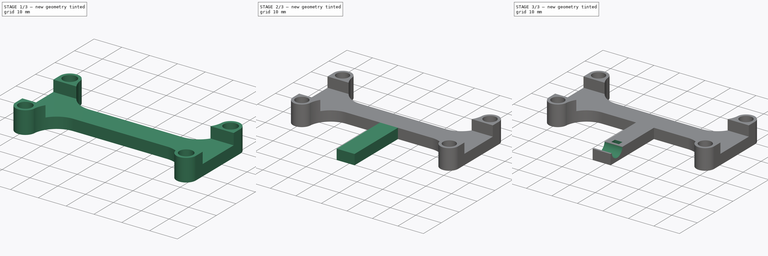
[diagram: build sequence overview — one tinted view per stage of 3, left to right]
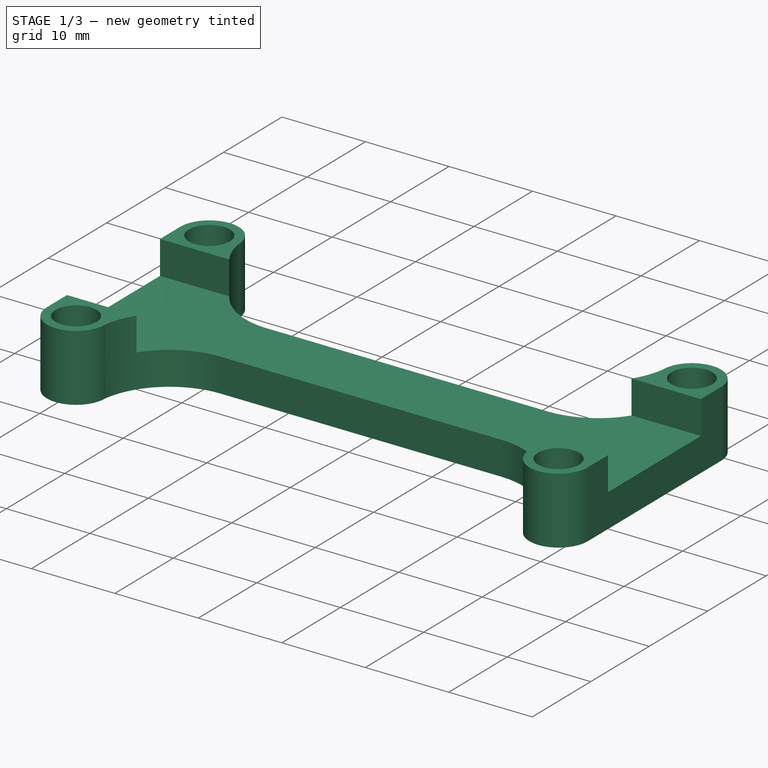
[diagram: stage 1 of 3 — iso view after this stage's code; geometry added in this stage tinted green]
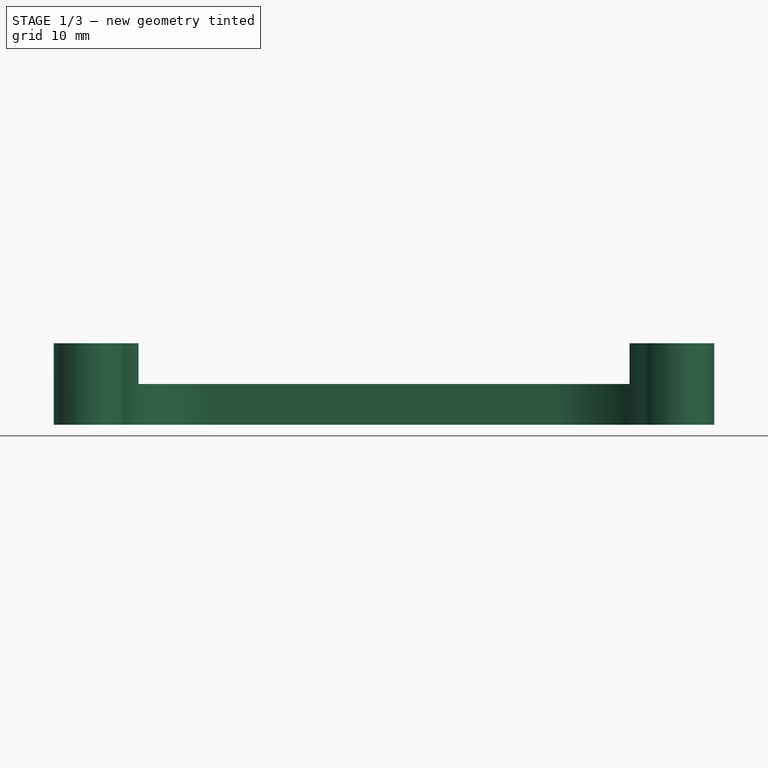
[diagram: stage 1 of 3 — front view after this stage's code; geometry added in this stage tinted green]
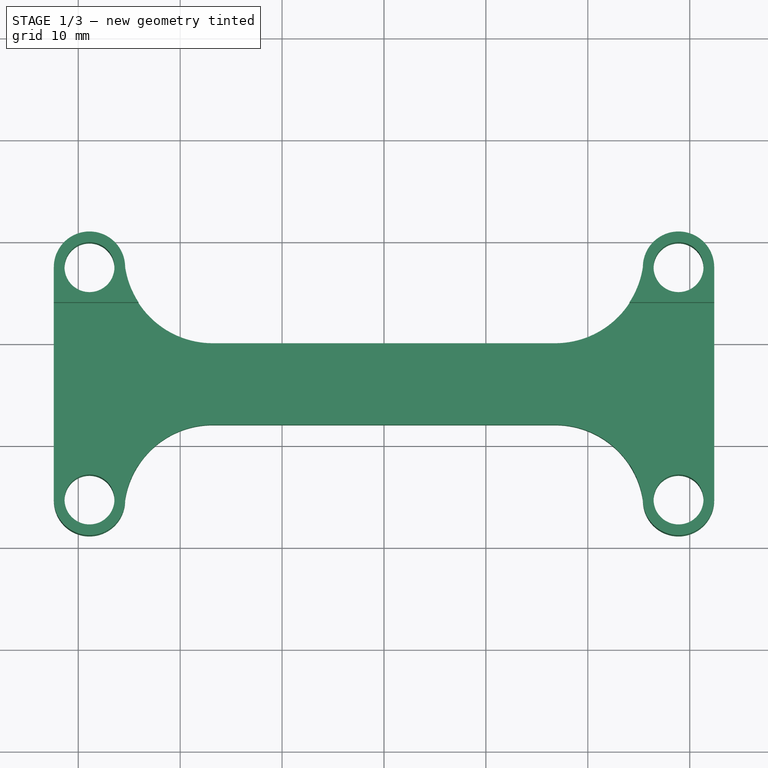
[diagram: stage 1 of 3 — top view after this stage's code; geometry added in this stage tinted green]
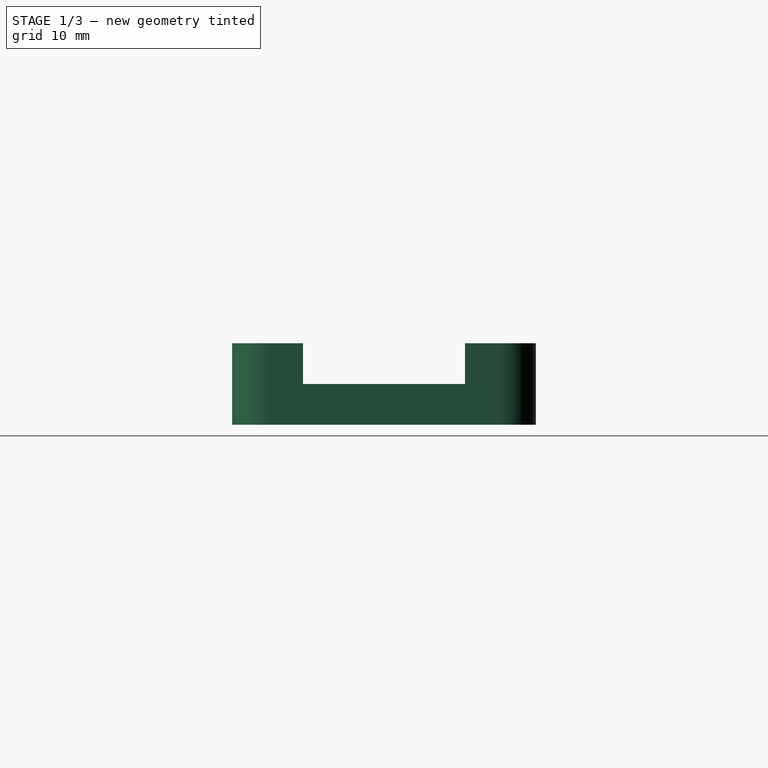
[diagram: stage 1 of 3 — right view after this stage's code; geometry added in this stage tinted green]
FCSTD DOCUMENT  (FreeCAD 1.0R39109 (Git))
Label: OragePiZero2W_Mount
License: All rights reserved
LicenseURL: http://en.wikipedia.org/wiki/All_rights_reserved
objects: Sketcher::SketchObject×6, PartDesign::Pad×2, PartDesign::Pocket×2, PartDesign::Hole×1, PartDesign::Body×1
note: 28 computed .brp shape members not serialized (recipe doc carries the construction recipe); baked Part::Feature solids carry a one-line shape summary decoded from their .brp

FEATURE [Sketcher::SketchObject] Sketch
  ArcFitTolerance = 1e-06
  AttachmentSupport = -> [XY_Plane]
  FullyConstrained = false
  MakeInternals = false
  MapMode = 5
  sketch-geometry (8):
    g0: Circle CenterX=28.9093 CenterY=17.414 CenterZ=0 NormalX=0 NormalY=0 NormalZ=1 AngleXU=0 Radius=1.4
    g1: Circle CenterX=-28.9 CenterY=17.4463 CenterZ=0 NormalX=0 NormalY=0 NormalZ=1 AngleXU=0 Radius=1.40972
    g2: LineSegment [constr] StartX=-27.4907 StartY=17.414 StartZ=0 EndX=27.5093 EndY=17.414 EndZ=0
    g3: Circle CenterX=28.9 CenterY=-5.35365 CenterZ=0 NormalX=0 NormalY=0 NormalZ=1 AngleXU=0 Radius=1.3686
    g4: Circle CenterX=-28.9 CenterY=-5.35365 CenterZ=0 NormalX=0 NormalY=0 NormalZ=1 AngleXU=0 Radius=1.4
    g5: LineSegment [constr] StartX=-27.5 StartY=-5.35365 StartZ=0 EndX=27.5 EndY=-5.35365 EndZ=0
    g6: LineSegment [constr] StartX=-28.9 StartY=-3.95365 StartZ=0 EndX=-28.9 EndY=16.0463 EndZ=0
    g7: LineSegment [constr] StartX=28.8589 StartY=16.0149 StartZ=0 EndX=28.8994 EndY=-3.98505 EndZ=0
  constraints (11):
    c: Diameter(g0) = 2.8
    c: PointOnObject(g2,g1)
    c: PointOnObject(g2,g0)
    c: Distance(g2) = 55
    c: Horizontal(g0,g2)
    c: Distance(g6) = 20
    c: PointOnObject(g7,g0)
    c: PointOnObject(g7,g3)
    c: Distance(g7) = 20
    c: Horizontal(g5)
    c: Horizontal(g2)
FEATURE [Sketcher::SketchObject] Sketch001
  ArcFitTolerance = 1e-06
  AttachmentSupport = -> [XY_Plane]
  ExternalGeometry = -> [Sketch]
  FullyConstrained = false
  MakeInternals = false
  MapMode = 5
  sketch-geometry (35):
    g0: Circle CenterX=-28.9 CenterY=17.4463 CenterZ=0 NormalX=0 NormalY=0 NormalZ=1 AngleXU=0 Radius=2.45
    g1: ArcOfCircle CenterX=-28.9 CenterY=17.4463 CenterZ=0 NormalX=0 NormalY=0 NormalZ=1 AngleXU=0 Radius=3.5 StartAngle=6.28319 EndAngle=6.28319
    g2: LineSegment [constr] StartX=-28.9 StartY=17.4463 StartZ=0 EndX=-32.4 EndY=17.4463 EndZ=0
    g3: LineSegment StartX=-32.4 StartY=17.4463 StartZ=0 EndX=-32.4 EndY=6.04635 EndZ=0
    g4: LineSegment [constr] StartX=-28.9 StartY=17.4463 StartZ=0 EndX=-25.4 EndY=17.4463 EndZ=0
    g5: LineSegment [constr] StartX=-32.4 StartY=6.04635 StartZ=0 EndX=1.2e-15 EndY=6.04651 EndZ=0
    g6: LineSegment [constr] StartX=0 StartY=6.04651 StartZ=0 EndX=0 EndY=10.0465 EndZ=0
    g7: ArcOfCircle CenterX=-28.9 CenterY=17.4463 CenterZ=0 NormalX=0 NormalY=0 NormalZ=1 AngleXU=0 Radius=3.5 StartAngle=1.45074e-07 EndAngle=3.14159
    g8: ArcOfCircle CenterX=-16.7962 CenterY=18.7478 CenterZ=0 NormalX=0 NormalY=0 NormalZ=1 AngleXU=0 Radius=8.70165 StartAngle=3.29171 EndAngle=4.70276
    g9: Circle CenterX=-28.8999 CenterY=-5.35362 CenterZ=0 NormalX=0 NormalY=0 NormalZ=1 AngleXU=0 Radius=2.45
    g10: ArcOfCircle CenterX=-28.8999 CenterY=-5.35362 CenterZ=0 NormalX=0 NormalY=0 NormalZ=1 AngleXU=0 Radius=3.5 StartAngle=9.94164e-06 EndAngle=1.00867e-05
    g11: LineSegment [constr] StartX=-28.8999 StartY=-5.35362 StartZ=0 EndX=-32.3999 EndY=-5.35365 EndZ=0
    g12: LineSegment StartX=-32.3999 StartY=-5.35365 StartZ=0 EndX=-32.4 EndY=6.04635 EndZ=0
    g13: LineSegment [constr] StartX=-28.8999 StartY=-5.35362 StartZ=0 EndX=-25.3999 EndY=-5.35358 EndZ=0
    g14: LineSegment [constr] StartX=-1.2e-15 StartY=6.04651 StartZ=0 EndX=3.98619e-05 EndY=2.04651 EndZ=0
    g15: ArcOfCircle CenterX=-28.8999 CenterY=-5.35362 CenterZ=0 NormalX=0 NormalY=0 NormalZ=1 AngleXU=0 Radius=3.5 StartAngle=3.1416 EndAngle=6.2832
    g16: ArcOfCircle CenterX=-16.7961 CenterY=-6.6549 CenterZ=0 NormalX=0 NormalY=0 NormalZ=1 AngleXU=0 Radius=8.70165 StartAngle=1.58043 EndAngle=2.99148
    g17: Circle CenterX=28.9 CenterY=17.4463 CenterZ=0 NormalX=0 NormalY=0 NormalZ=1 AngleXU=0 Radius=2.45
    g18: ArcOfCircle CenterX=28.9 CenterY=17.4463 CenterZ=0 NormalX=0 NormalY=0 NormalZ=1 AngleXU=0 Radius=3.5 StartAngle=3.14159 EndAngle=3.14159
    g19: LineSegment [constr] StartX=28.9 StartY=17.4463 StartZ=0 EndX=32.4 EndY=17.4463 EndZ=0
    g20: LineSegment StartX=32.4 StartY=17.4463 StartZ=0 EndX=32.4 EndY=6.04635 EndZ=0
    g21: LineSegment [constr] StartX=28.9 StartY=17.4463 StartZ=0 EndX=25.4 EndY=17.4463 EndZ=0
    g22: LineSegment [constr] StartX=0 StartY=6.04651 StartZ=0 EndX=0 EndY=10.0465 EndZ=0
    g23: ArcOfCircle CenterX=28.9 CenterY=17.4463 CenterZ=0 NormalX=0 NormalY=0 NormalZ=1 AngleXU=0 Radius=3.5 StartAngle=1.21233e-07 EndAngle=3.14159
    g24: ArcOfCircle CenterX=16.7962 CenterY=18.7478 CenterZ=0 NormalX=0 NormalY=0 NormalZ=1 AngleXU=0 Radius=8.70165 StartAngle=4.72202 EndAngle=6.13306
    g25: Circle CenterX=28.8999 CenterY=-5.35362 CenterZ=0 NormalX=0 NormalY=0 NormalZ=1 AngleXU=0 Radius=2.45
    g26: ArcOfCircle CenterX=28.8999 CenterY=-5.35362 CenterZ=0 NormalX=0 NormalY=0 NormalZ=1 AngleXU=0 Radius=3.5 StartAngle=3.14158 EndAngle=3.14158
    g27: LineSegment [constr] StartX=28.8999 StartY=-5.35362 StartZ=0 EndX=32.3999 EndY=-5.35365 EndZ=0
    g28: LineSegment StartX=32.3999 StartY=-5.35365 StartZ=0 EndX=32.4 EndY=6.04635 EndZ=0
    g29: LineSegment [constr] StartX=28.8999 StartY=-5.35362 StartZ=0 EndX=25.3999 EndY=-5.35358 EndZ=0
    g30: LineSegment [constr] StartX=1.2e-15 StartY=6.04651 StartZ=0 EndX=-3.98619e-05 EndY=2.04651 EndZ=0
    g31: ArcOfCircle CenterX=28.8999 CenterY=-5.35362 CenterZ=0 NormalX=0 NormalY=0 NormalZ=1 AngleXU=0 Radius=3.5 StartAngle=3.14158 EndAngle=6.28318
    g32: ArcOfCircle CenterX=16.7961 CenterY=-6.6549 CenterZ=0 NormalX=0 NormalY=0 NormalZ=1 AngleXU=0 Radius=8.70165 StartAngle=0.150112 EndAngle=1.56116
    g33: LineSegment StartX=-16.88 StartY=10.0465 StartZ=0 EndX=16.88 EndY=10.0465 EndZ=0
    g34: LineSegment StartX=-16.88 StartY=2.04634 StartZ=0 EndX=16.88 EndY=2.04634 EndZ=0
  constraints (67):
    c: Diameter(g0) = 4.9
    c: Coincident(g0,g-3)
    c: Diameter(g1) = 7
    c: Coincident(g1,g0)
    c: Coincident(g2,g0)
    c: Horizontal(g2)
    c: Coincident(g1,g4)
    c: PointOnObject(g6,g-2)
    c: Vertical(g6)
    c: Coincident(g6,g5)
    c: Distance(g6) = 4
    c: Distance(g5) = 32.4
    c: Distance(g3) = 11.4
    c: Coincident(g2,g3)
    c: Coincident(g3,g5)
    c: Coincident(g7,g4)
    c: Coincident(g7,g2)
    c: Coincident(g7,g1)
    c: Coincident(g8,g1)
    c: Radius(g7) = 3.5
    c: Diameter(g9) = 4.9
    c: Diameter(g10) = 7
    c: Coincident(g10,g9)
    c: Coincident(g11,g9)
    c: Coincident(g10,g13)
    c: Distance(g14) = 4
    c: Distance(g12) = 11.4
    c: Coincident(g11,g12)
    c: Coincident(g15,g13)
    c: Coincident(g15,g11)
    c: Coincident(g15,g10)
    c: Coincident(g16,g10)
    c: Radius(g15) = 3.5
    c: Diameter(g17) = 4.9
    c: Diameter(g18) = 7
    c: Coincident(g18,g17)
    c: Coincident(g19,g17)
    c: Horizontal(g19)
    c: Coincident(g18,g21)
    c: Vertical(g22)
    c: Distance(g22) = 4
    c: Distance(g20) = 11.4
    c: Coincident(g19,g20)
    c: Coincident(g23,g21)
    c: Coincident(g23,g19)
    c: Coincident(g23,g18)
    c: Coincident(g24,g18)
    c: Radius(g23) = 3.5
    c: Diameter(g25) = 4.9
    c: Diameter(g26) = 7
    c: Coincident(g26,g25)
    c: Coincident(g27,g25)
    c: Coincident(g26,g29)
    c: Distance(g30) = 4
    c: Distance(g28) = 11.4
    c: Coincident(g27,g28)
    c: Coincident(g31,g29)
    c: Coincident(g31,g27)
    c: Coincident(g31,g26)
    c: Coincident(g32,g26)
    c: Radius(g31) = 3.5
    c: Coincident(g33,g8)
    c: Coincident(g33,g24)
    c: Horizontal(g33)
    c: Coincident(g34,g16)
    c: Coincident(g34,g32)
    c: Horizontal(g34)
FEATURE [PartDesign::Pad] Pad
  Direction = (0,0,1)
  Length = 8
  Length2 = 10
  Profile = -> Sketch001
  ReferenceAxis = -> Sketch001 [N_Axis]
  Suppressed = false
  Type = 0
FEATURE [Sketcher::SketchObject] Sketch002
  ArcFitTolerance = 1e-06
  AttachmentSupport = -> [Pad]
  ExternalGeometry = -> [Pad]
  FullyConstrained = true
  MakeInternals = false
  MapMode = 5
  Placement = pos=(32.3999,-0.00032288,0) rot=(0.577354,0.577348,0.577348;2.09439rad)
  sketch-geometry (6):
    g0: LineSegment [constr] StartX=-2.90333 StartY=8 StartZ=0 EndX=-1.90333 EndY=8 EndZ=0
    g1: LineSegment [constr] StartX=14.9966 StartY=8 StartZ=0 EndX=13.9966 EndY=8 EndZ=0
    g2: LineSegment StartX=-1.90333 StartY=8 StartZ=0 EndX=-1.90333 EndY=4 EndZ=0
    g3: LineSegment StartX=-1.90333 StartY=4 StartZ=0 EndX=13.9967 EndY=4 EndZ=0
    g4: LineSegment StartX=13.9967 StartY=4 StartZ=0 EndX=13.9967 EndY=8 EndZ=0
    g5: LineSegment StartX=13.9967 StartY=8 StartZ=0 EndX=-1.90333 EndY=8 EndZ=0
  constraints (17):
    c: Distance(g0) = 1
    c: Coincident(g0,g-5)
    c: PointOnObject(g0,g-4)
    c: Distance(g1) = 1
    c: Coincident(g1,g-6)
    c: PointOnObject(g1,g-3)
    c: Coincident(g2,g3)
    c: Coincident(g3,g4)
    c: Coincident(g4,g5)
    c: Coincident(g5,g2)
    c: Vertical(g2)
    c: Vertical(g4)
    c: Horizontal(g3)
    c: Horizontal(g5)
    c: Distance(g2,g4) = 15.9
    c: Distance(g3,g5) = 4
    c: Coincident(g2,g0)
FEATURE [PartDesign::Pocket] Pocket
  BaseFeature = -> Pad
  Direction = (-1,9.96544e-06,1e-16)
  Length = 5
  Length2 = 5
  Profile = -> Sketch002
  ReferenceAxis = -> Sketch002 [N_Axis]
  Suppressed = false
  Type = 1
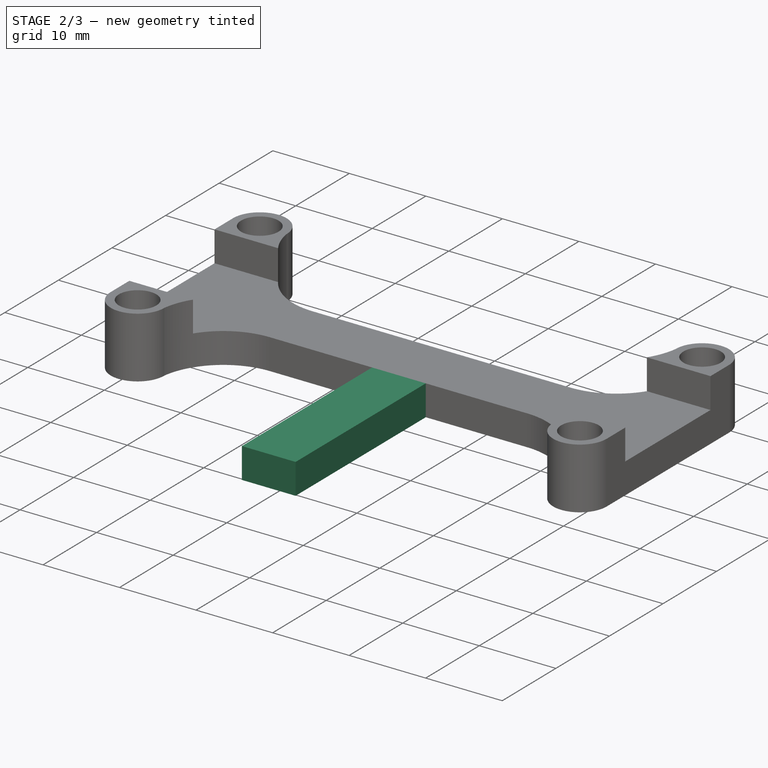
[diagram: stage 2 of 3 — iso view after this stage's code; geometry added in this stage tinted green]
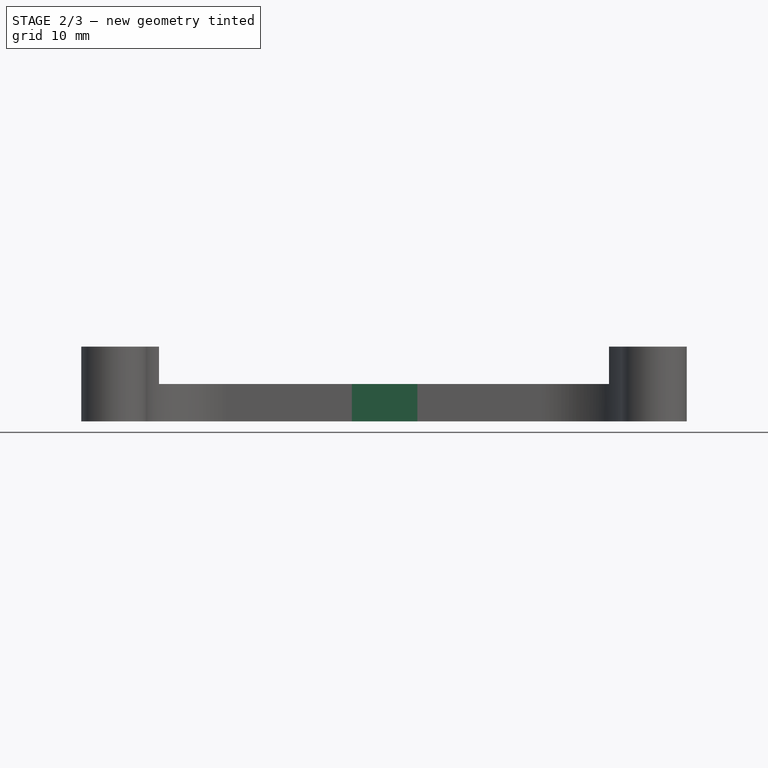
[diagram: stage 2 of 3 — front view after this stage's code; geometry added in this stage tinted green]
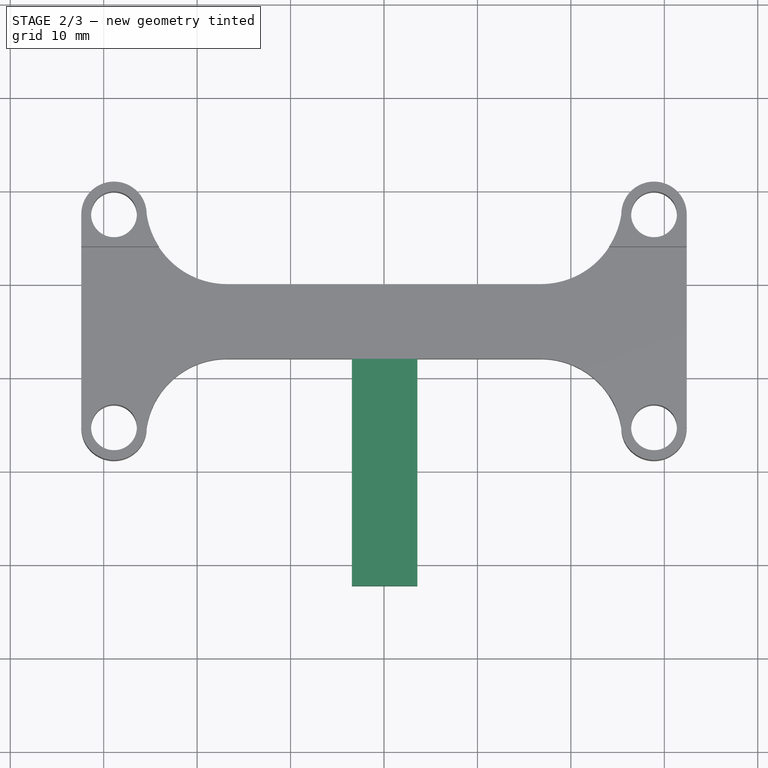
[diagram: stage 2 of 3 — top view after this stage's code; geometry added in this stage tinted green]
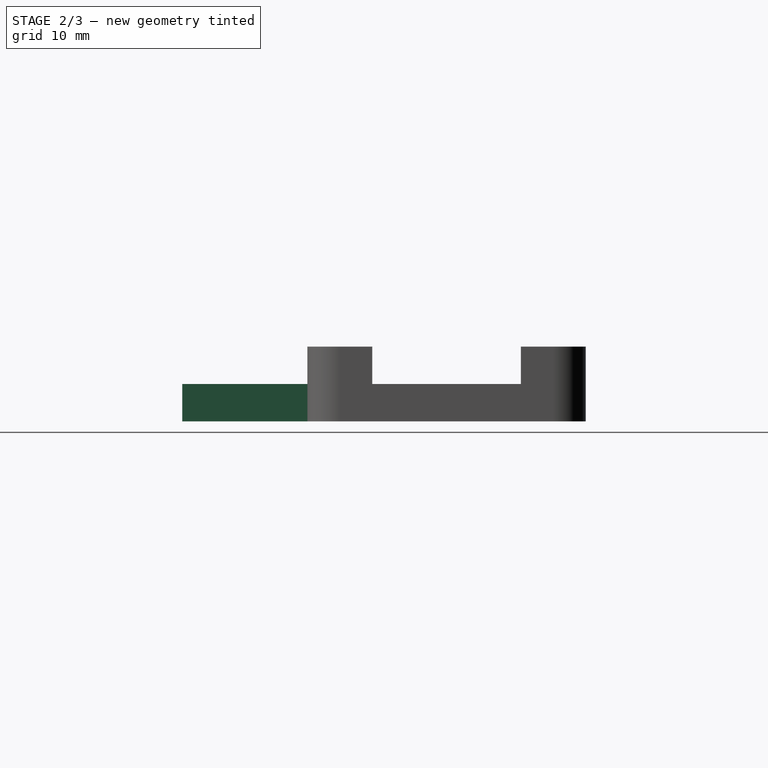
[diagram: stage 2 of 3 — right view after this stage's code; geometry added in this stage tinted green]
FEATURE [Sketcher::SketchObject] Sketch003
  ArcFitTolerance = 1e-06
  AttachmentSupport = -> [Pocket]
  FullyConstrained = false
  MakeInternals = false
  MapMode = 5
  Placement = pos=(0,0,0) rot=(1,0,0;3.14159rad)
  sketch-geometry (4):
    g0: LineSegment StartX=-3.44467 StartY=-2.20182 StartZ=0 EndX=3.57097 EndY=-2.20182 EndZ=0
    g1: LineSegment StartX=3.57097 StartY=-2.20182 StartZ=0 EndX=3.57097 EndY=22.2466 EndZ=0
    g2: LineSegment StartX=3.57097 StartY=22.2466 StartZ=0 EndX=-3.44467 EndY=22.2466 EndZ=0
    g3: LineSegment StartX=-3.44467 StartY=22.2466 StartZ=0 EndX=-3.44467 EndY=-2.20182 EndZ=0
  constraints (8):
    c: Coincident(g0,g1)
    c: Coincident(g1,g2)
    c: Coincident(g2,g3)
    c: Coincident(g3,g0)
    c: Horizontal(g0)
    c: Horizontal(g2)
    c: Vertical(g1)
    c: Vertical(g3)
FEATURE [PartDesign::Pad] Pad001
  BaseFeature = -> Pocket
  Direction = (0,0,-1)
  Length = 4
  Length2 = 10
  Profile = -> Sketch003
  ReferenceAxis = -> Sketch003 [N_Axis]
  Reversed = true
  Suppressed = false
  Type = 0
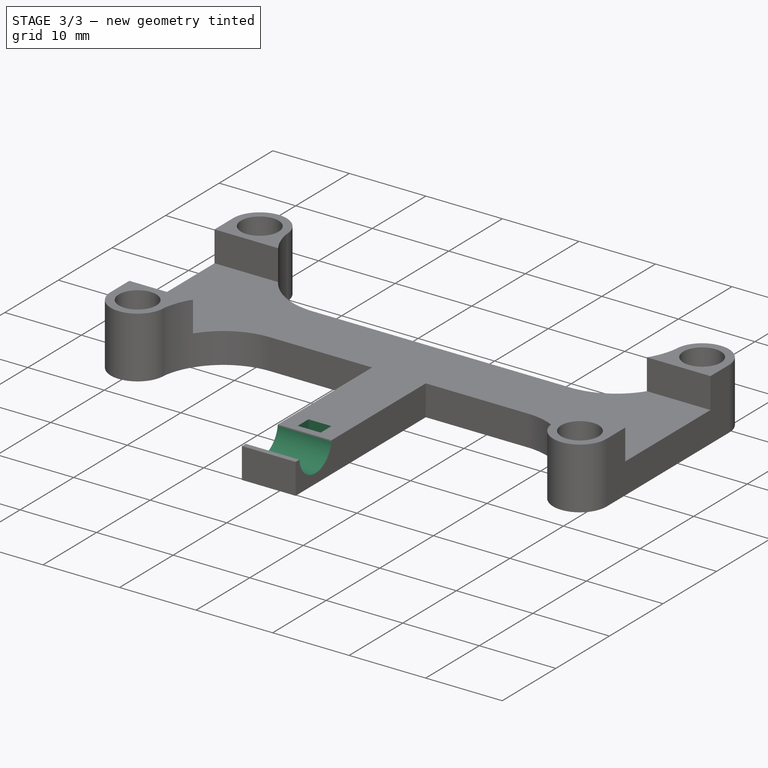
[diagram: stage 3 of 3 — iso view after this stage's code; geometry added in this stage tinted green]
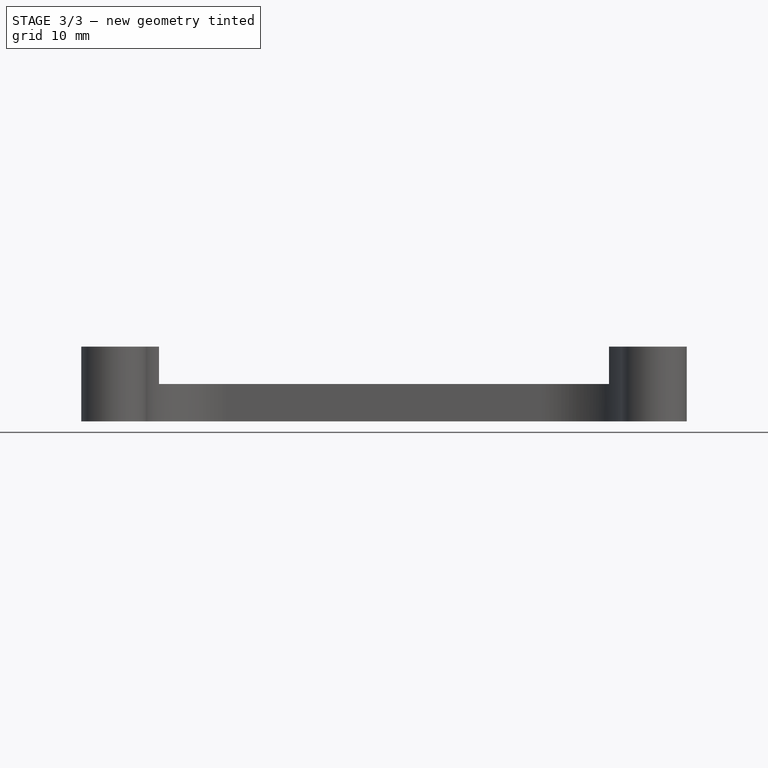
[diagram: stage 3 of 3 — front view after this stage's code; geometry added in this stage tinted green]
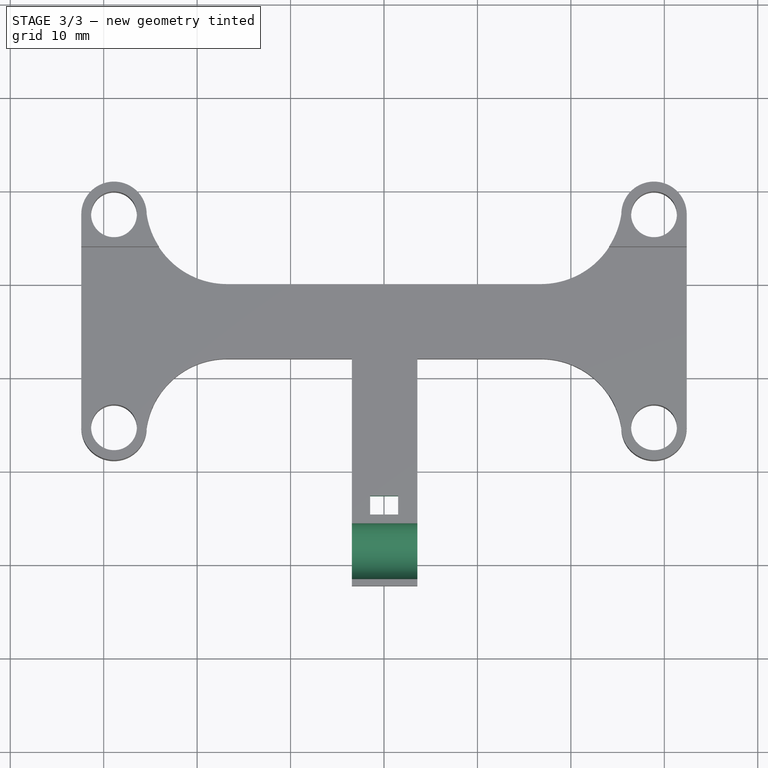
[diagram: stage 3 of 3 — top view after this stage's code; geometry added in this stage tinted green]
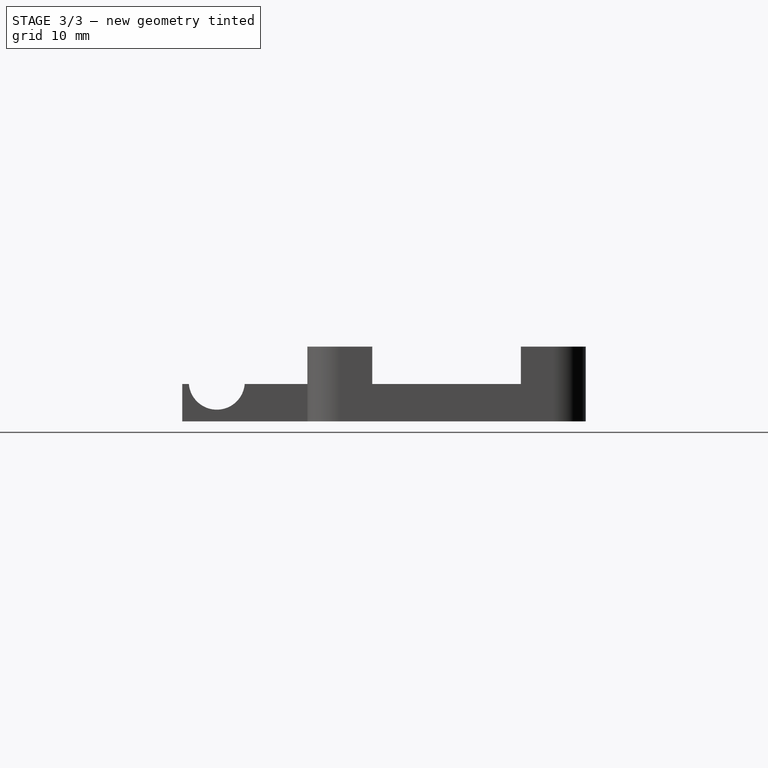
[diagram: stage 3 of 3 — right view after this stage's code; geometry added in this stage tinted green]
FEATURE [Sketcher::SketchObject] Sketch004
  ArcFitTolerance = 1e-06
  AttachmentSupport = -> [Pad001]
  FullyConstrained = false
  MakeInternals = false
  MapMode = 5
  Placement = pos=(-3.44467,0,0) rot=(0.57735,-0.57735,-0.57735;2.0944rad)
  sketch-geometry (1):
    g0: Circle CenterX=18.5469 CenterY=4.25365 CenterZ=0 NormalX=0 NormalY=0 NormalZ=1 AngleXU=0 Radius=3.07562
FEATURE [PartDesign::Hole] Hole
  BaseFeature = -> Pad001
  CustomThreadClearance = 0
  Depth = 25
  DepthType = 0
  Diameter = 6
  DrillForDepth = false
  DrillPoint = 1
  DrillPointAngle = 118
  HoleCutCountersinkAngle = 90
  HoleCutCustomValues = false
  HoleCutDepth = 0
  HoleCutDiameter = 6.1
  HoleCutType = 0
  ModelThread = false
  Profile = -> Sketch004
  Suppressed = false
  Tapered = false
  TaperedAngle = 90
  ThreadClass = 0
  ThreadDepth = 25
  ThreadDepthType = 0
  ThreadDirection = 0
  ThreadFit = 0
  ThreadSize = 0
  ThreadType = 0
  Threaded = false
  UseCustomThreadClearance = false
FEATURE [Sketcher::SketchObject] Sketch005
  ArcFitTolerance = 1e-06
  AttachmentSupport = -> [Hole]
  FullyConstrained = false
  MakeInternals = false
  MapMode = 5
  Placement = pos=(0,0,4) rot=(0,0,1;0rad)
  sketch-geometry (4):
    g0: LineSegment StartX=-1.49124 StartY=-12.6161 StartZ=0 EndX=-1.49124 EndY=-14.6161 EndZ=0
    g1: LineSegment StartX=-1.49124 StartY=-14.6161 StartZ=0 EndX=1.50876 EndY=-14.6161 EndZ=0
    g2: LineSegment StartX=1.50876 StartY=-14.6161 StartZ=0 EndX=1.50876 EndY=-12.6161 EndZ=0
    g3: LineSegment StartX=1.50876 StartY=-12.6161 StartZ=0 EndX=-1.49124 EndY=-12.6161 EndZ=0
  constraints (10):
    c: Coincident(g0,g1)
    c: Coincident(g1,g2)
    c: Coincident(g2,g3)
    c: Coincident(g3,g0)
    c: Vertical(g0)
    c: Vertical(g2)
    c: Horizontal(g1)
    c: Horizontal(g3)
    c: Distance(g0,g2) = 3
    c: Distance(g1,g3) = 2
FEATURE [PartDesign::Pocket] Pocket001
  BaseFeature = -> Hole
  Direction = (0,0,-1)
  Length = 5
  Length2 = 5
  Profile = -> Sketch005
  ReferenceAxis = -> Sketch005 [N_Axis]
  Suppressed = false
  Type = 1
FEATURE [PartDesign::Body] Body
  AllowCompound = false
  Group = -> [Sketch,Sketch001,Pad,Sketch002,Pocket,Sketch003,Pad001,Sketch004,Hole,Sketch005,Pocket001]
  Origin = -> Origin
  Tip = -> Pocket001
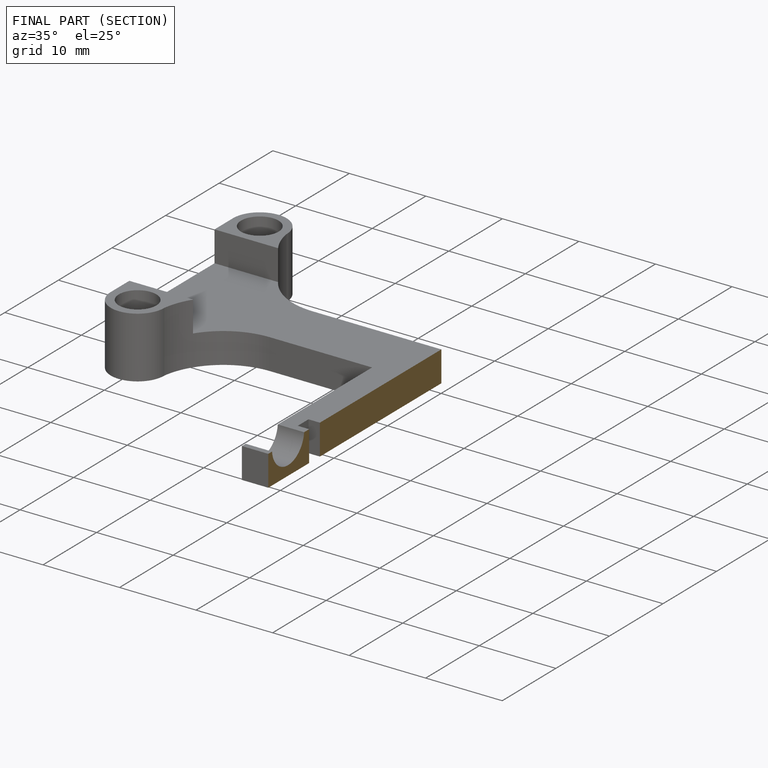
[diagram: finished part — half-section view (interior)]
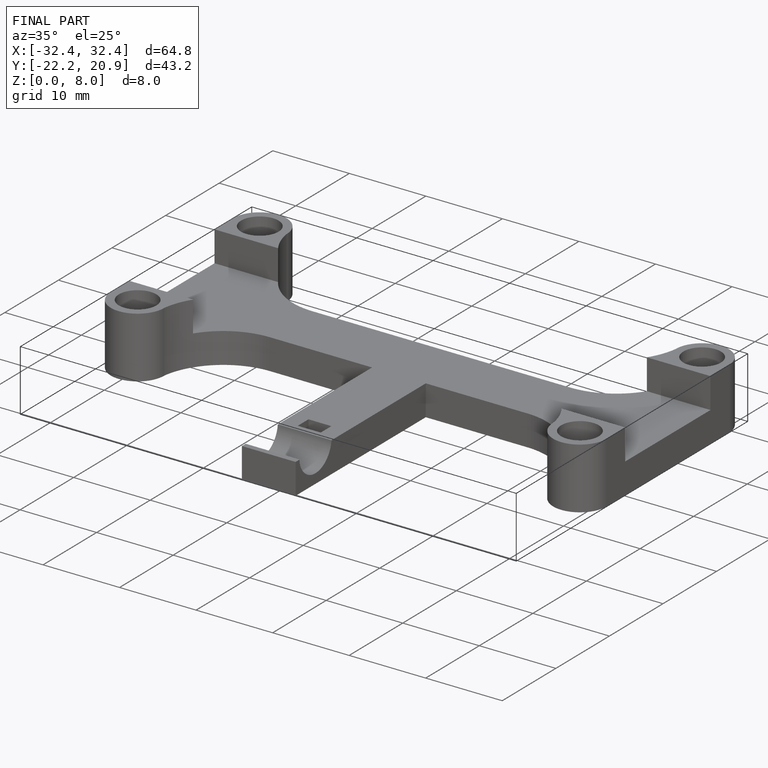
[diagram: finished part — iso view with bounding-box wireframe]
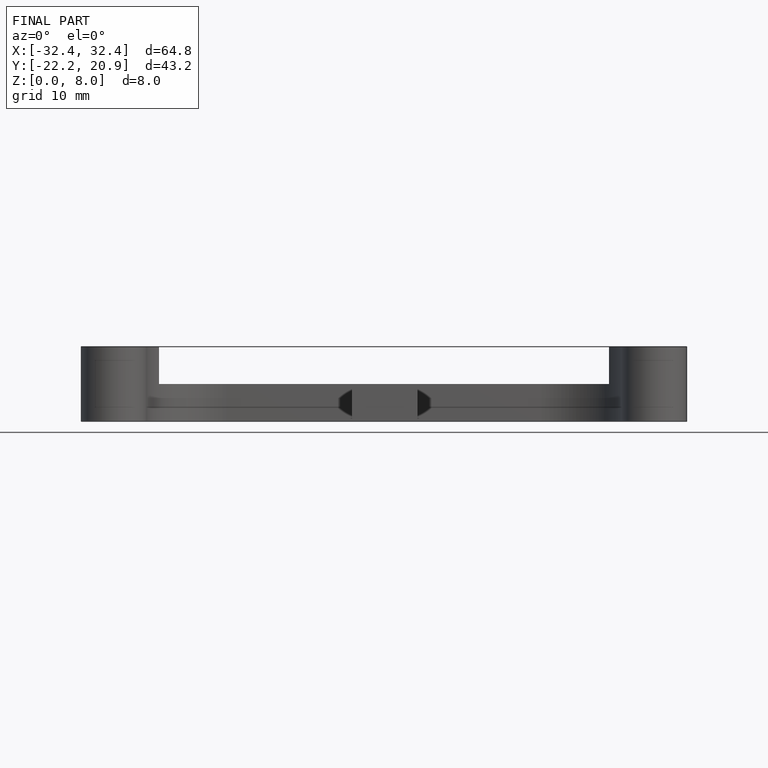
[diagram: finished part — front view with bounding-box wireframe]
